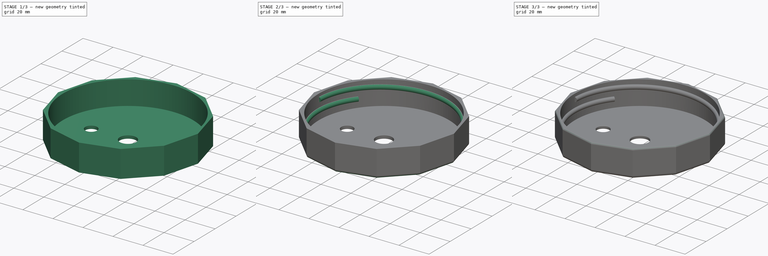
[diagram: build sequence overview — one tinted view per stage of 3, left to right]
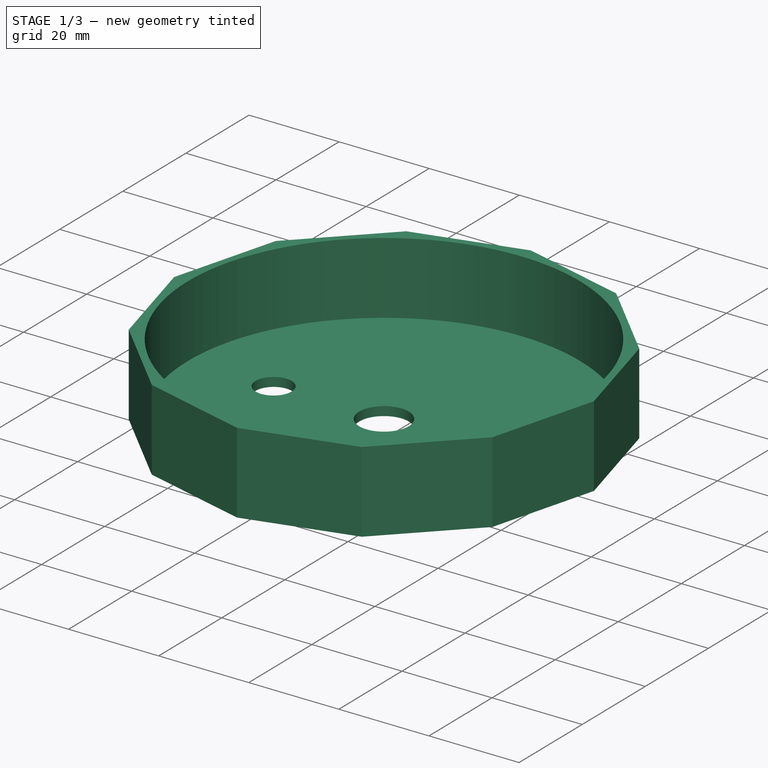
[diagram: stage 1 of 3 — iso view after this stage's code; geometry added in this stage tinted green]
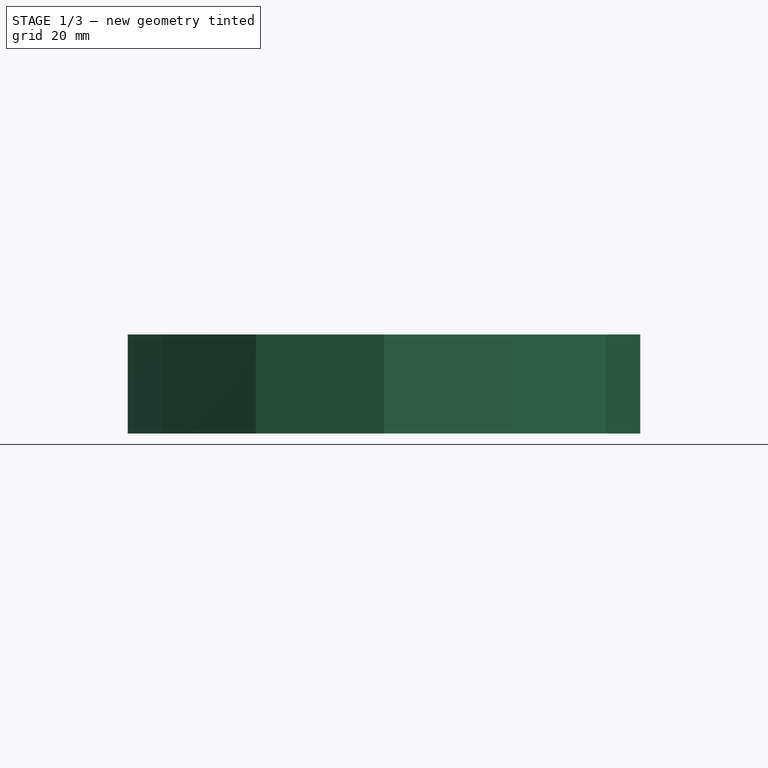
[diagram: stage 1 of 3 — front view after this stage's code; geometry added in this stage tinted green]
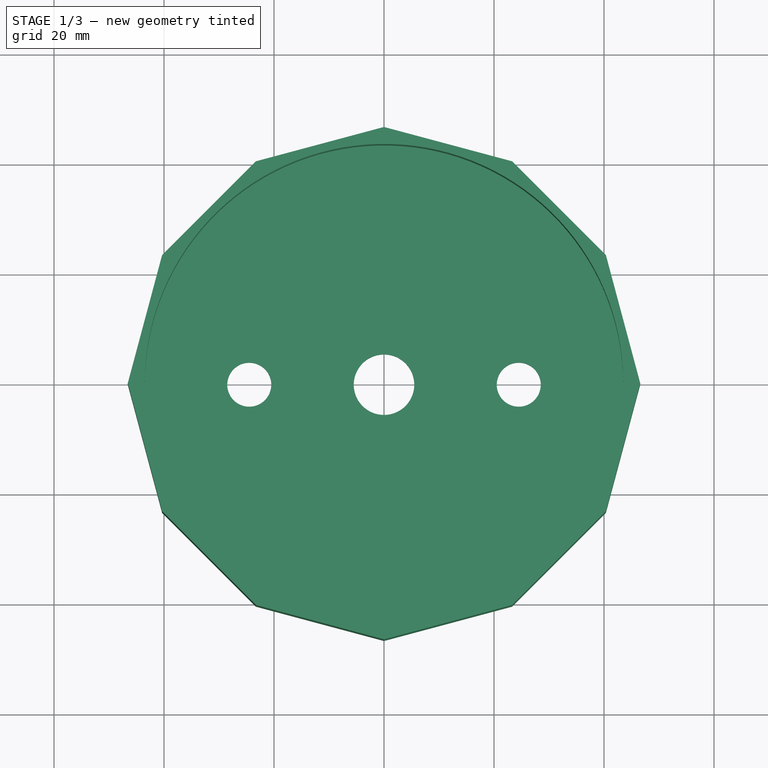
[diagram: stage 1 of 3 — top view after this stage's code; geometry added in this stage tinted green]
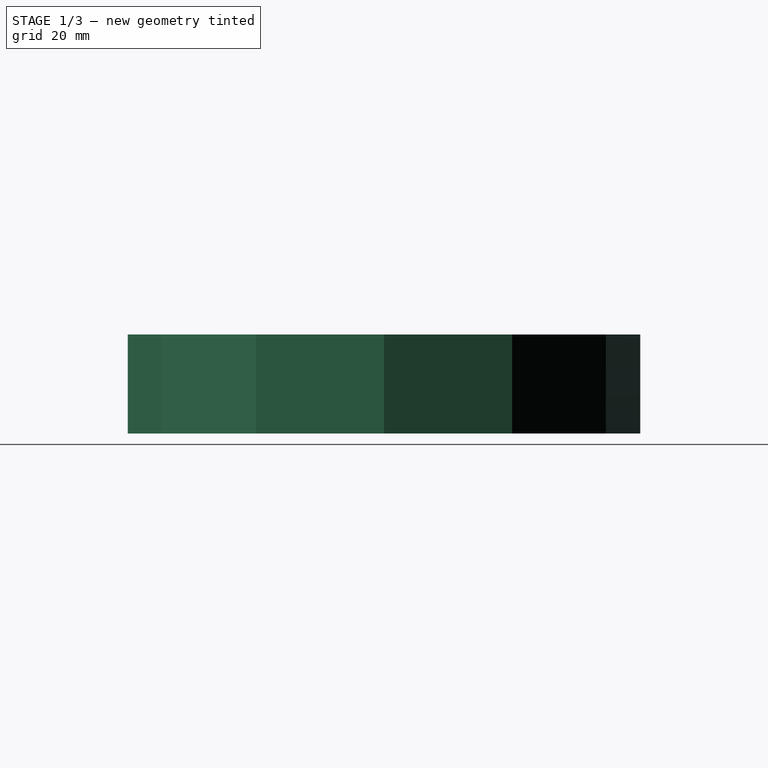
[diagram: stage 1 of 3 — right view after this stage's code; geometry added in this stage tinted green]
FCSTD DOCUMENT  (FreeCAD 2023.131R26244 +5365 (Git))
Label: Mason Jar Mycology Lid - Threaded
License: All rights reserved
LicenseURL: http://en.wikipedia.org/wiki/All_rights_reserved
objects: Sketcher::SketchObject×3, PartDesign::Fillet×3, Spreadsheet::Sheet×2, PartDesign::Body×2, PartDesign::Pad×1, PartDesign::Hole×1, PartDesign::AdditiveHelix×1
note: 26 computed .brp shape members not serialized (recipe doc carries the construction recipe); baked Part::Feature solids carry a one-line shape summary decoded from their .brp

FEATURE [Spreadsheet::Sheet] Spreadsheet  label="Parameters"
  PythonMode = false
  ShowCells = 0
  TreeRank = 1
  cells = A2=Ring Inner Diameter; B2(Ring_Inner_Diameter)=87; C2=Should be large enough to fit over the threads on the glass jar.; A3=Ring Min Thickness; B3(Ring_Min_Thickness)=1.5; C3=The thickness of the thinnest part of the ring.; A4=Ring Side Height; B4(Ring_Side_Height)=16; C4=How much material will screw onto the jar.; A5=Ring Top Height; B5(Ring_Top_Height)=2; C5=How thick the lid is on top of the jar.; A7=Thread Pitch; B7(Thread_Pitch)=6.5; C7=The thread pitch.; A8=Thread Width; B8(Thread_Width)=3; C8=The distance between two thread on the jar.; A9=Thread Height; B9(Thread_Height)=3; C9=The height of the threads from the inner survace of the lid.; A10=Thread Offset; B10(Thread_Offset)=2; C10=Distance from the bottom of the ring where the threads start.; A11=Thread Turns; B11(Thread_Turns)=1.1; C11=The number of turns inside the ring.; A13=Hole Layout; B13(Hole_Layout)=Line; C13=Enter either Line or Triangle; B14=Diameter; C14=Offset from Origin; D14=Angle From Horizontal; A15=Middle Hole; B15(Middle_Hole_Diameter)=11; C15(Middle_Hole_Offset)==B13 == <<Line>> ? 0 : B2 / 5; A16=Left Hole; B16(Left_Hole_Diameter)=8; C16(Left_Hole_Offset)==B13 == <<Line>> ? (B2 / 2 - B15 / 2) / 2 + B15 / 2 : B2 / 5; D16(Left_Hole_Angle)==B13 == <<Line>> ? 90 : 60; A17=Right Hole; B17(Right_Hole_Diameter)=8; C17(Right_Hole_Offset)==B13 == <<Line>> ? (B2 / 2 - B15 / 2) / 2 + B15 / 2 : B2 / 5; D17(Right_Hole_Angle)==B13 == <<Line>> ? 90 : 60; A19=Hole Fillet; B19(Hole_Fillet)=0.5; A20=Top Fillet; B20(Top_Fillet)=2; A21=Bottom Fillet; B21(Bottom_Fillet)=1
FEATURE [Sketcher::SketchObject] Sketch
  ArcFitTolerance = 1e-06
  AttachmentSupport = -> [XY_Plane]
  ExternalBSplineMaxDegree = 5
  ExternalBSplineTolerance = 0.0001
  FullyConstrained = true
  InternalTolerance = 1e-06
  InvalidShape = false
  MakeInternals = false
  MapMode = 5
  Support = -> [XY_Plane]
  TreeRank = 14
  ValidateShape = true
  expr: Constraints[37] = <<Parameters>>.Ring_Inner_Diameter + <<Parameters>>.Ring_Min_Thickness * 2
  expr: Constraints[40] = <<Parameters>>.Middle_Hole_Diameter
  expr: Constraints[41] = <<Parameters>>.Left_Hole_Diameter
  expr: Constraints[42] = <<Parameters>>.Right_Hole_Diameter
  expr: Constraints[44] = <<Parameters>>.Middle_Hole_Offset
  expr: Constraints[46] = <<Parameters>>.Left_Hole_Offset
  expr: Constraints[47] = 180 - <<Parameters>>.Left_Hole_Angle
  expr: Constraints[50] = <<Parameters>>.Right_Hole_Offset
  expr: Constraints[52] = 180 - <<Parameters>>.Right_Hole_Angle
  sketch-geometry (19):
    g0: LineSegment StartX=-40.3459 StartY=23.2937 StartZ=0 EndX=-46.5874 EndY=0 EndZ=0
    g1: LineSegment StartX=-46.5874 StartY=0 StartZ=0 EndX=-40.3459 EndY=-23.2937 EndZ=0
    g2: LineSegment StartX=-40.3459 StartY=-23.2937 StartZ=0 EndX=-23.2937 EndY=-40.3459 EndZ=0
    g3: LineSegment StartX=-23.2937 StartY=-40.3459 StartZ=0 EndX=-7.46e-14 EndY=-46.5874 EndZ=0
    g4: LineSegment StartX=-7.31e-14 StartY=-46.5874 StartZ=0 EndX=23.2937 EndY=-40.3459 EndZ=0
    g5: LineSegment StartX=23.2937 StartY=-40.3459 StartZ=0 EndX=40.3459 EndY=-23.2937 EndZ=0
    g6: LineSegment StartX=40.3459 StartY=-23.2937 StartZ=0 EndX=46.5874 EndY=1.35e-13 EndZ=0
    g7: LineSegment StartX=46.5874 StartY=1.334e-13 StartZ=0 EndX=40.3459 EndY=23.2937 EndZ=0
    g8: LineSegment StartX=40.3459 StartY=23.2937 StartZ=0 EndX=23.2937 EndY=40.3459 EndZ=0
    g9: LineSegment StartX=23.2937 StartY=40.3459 StartZ=0 EndX=1.243e-13 EndY=46.5874 EndZ=0
    g10: LineSegment StartX=1.229e-13 StartY=46.5874 StartZ=0 EndX=-23.2937 EndY=40.3459 EndZ=0
    g11: LineSegment StartX=-23.2937 StartY=40.3459 StartZ=0 EndX=-40.3459 EndY=23.2937 EndZ=0
    g12: Circle [constr] CenterX=0 CenterY=0 CenterZ=0 NormalX=0 NormalY=0 NormalZ=1 AngleXU=0 Radius=46.5874
    g13: Circle [constr] CenterX=0 CenterY=0 CenterZ=0 NormalX=0 NormalY=0 NormalZ=1 AngleXU=0 Radius=45
    g14: Circle CenterX=0 CenterY=0 CenterZ=0 NormalX=0 NormalY=0 NormalZ=1 AngleXU=0 Radius=5.5
    g15: Circle CenterX=24.5 CenterY=3.62e-14 CenterZ=0 NormalX=0 NormalY=0 NormalZ=1 AngleXU=0 Radius=4
    g16: Circle CenterX=-24.5 CenterY=-9.7e-14 CenterZ=0 NormalX=0 NormalY=0 NormalZ=1 AngleXU=0 Radius=4
    g17: LineSegment [constr] StartX=0 StartY=0 StartZ=0 EndX=-24.5 EndY=-9.7e-14 EndZ=0
    g18: LineSegment [constr] StartX=0 StartY=0 StartZ=0 EndX=24.5 EndY=3.62e-14 EndZ=0
  constraints (43):
    c: Coincident(g0,g1)
    c: Coincident(g1,g2)
    c: Coincident(g2,g3)
    c: Coincident(g3,g4)
    c: Coincident(g4,g5)
    c: Coincident(g5,g6)
    c: Coincident(g6,g7)
    c: Coincident(g7,g8)
    c: Coincident(g8,g9)
    c: Coincident(g9,g10)
    c: Coincident(g10,g11)
    c: Coincident(g11,g0)
    c: Equal(g0, g1-g11) x11
    c: PointOnObject(g0,g12)
    c: PointOnObject(g1,g12)
    c: PointOnObject(g2,g12)
    c: PointOnObject(g3,g12)
    c: PointOnObject(g4,g12)
    c: PointOnObject(g5,g12)
    c: PointOnObject(g6,g12)
    c: PointOnObject(g7,g12)
    c: PointOnObject(g8,g12)
    c: PointOnObject(g9,g12)
    c: PointOnObject(g10,g12)
    c: PointOnObject(g11,g12)
    c: Coincident(g12,g-1)
    c: Coincident(g13,g12)
    c: Diameter(g13) = 90
    c: Tangent(g13,g9)
    c: PointOnObject(g0,g-1)
    c: Diameter(g14) = 11
    c: Diameter(g16) = 8
    c: Diameter(g15) = 8
    c: PointOnObject(g14,g-2)
    c: DistanceY(g12,g14) = 0
    c: Coincident(g17,g12)
    c: Distance(g17,g12) = 24.5
    c: Angle(g-2,g17) = 1.5708
    c: Coincident(g16,g17)
    c: Coincident(g18,g12)
    c: Distance(g12,g18) = 24.5
    c: Coincident(g15,g18)
    c: Angle(g18,g-2) = 1.5708
FEATURE [PartDesign::Pad] Pad  label="Lid"
  AddSubType = 0
  AlongSketchNormal = false
  AutoTaperInnerAngle = true
  CheckUpToFaceLimits = true
  ClaimChildren = false
  Direction = (0,0,1)
  Fit = 0
  FitJoin = 0
  InnerFit = 0
  InnerFitJoin = 0
  InvalidShape = false
  Length = 18
  Length2 = 100
  Linearize = true
  NewSolid = false
  Profile = -> Sketch
  Suppress = false
  TaperInnerAngle = 0
  TaperInnerAngleRev = 0
  TreeRank = 15
  Type = 0
  ValidateShape = true
  _ProfileBasedVersion = 1
  expr: Length = <<Parameters>>.Ring_Side_Height + <<Parameters>>.Ring_Top_Height
FEATURE [Sketcher::SketchObject] Sketch001  label="Hole"
  ArcFitTolerance = 1e-06
  AttachmentSupport = -> [Pad]
  ExternalBSplineMaxDegree = 5
  ExternalBSplineTolerance = 0.0001
  FullyConstrained = true
  InternalTolerance = 1e-06
  InvalidShape = false
  MakeInternals = false
  MapMode = 5
  Placement = pos=(0,0,18) rot=(0,0,1;0rad)
  Support = -> [Pad]
  TreeRank = 16
  ValidateShape = true
  expr: Constraints[1] = <<Parameters>>.Ring_Inner_Diameter
  sketch-geometry (1):
    g0: Circle CenterX=0 CenterY=0 CenterZ=0 NormalX=0 NormalY=0 NormalZ=1 AngleXU=0 Radius=43.5
  constraints (2):
    c: Coincident(g0,g-1)
    c: Diameter(g0) = 87
FEATURE [PartDesign::Hole] Hole  label="Bottle Opening"
  AddSubType = 1
  BaseFeature = -> Pad
  ClaimChildren = false
  CustomThreadClearance = 0
  Depth = 16
  DepthType = 0
  Diameter = 87
  DrillForDepth = false
  DrillPoint = 0
  DrillPointAngle = 118
  Fit = 0
  FitJoin = 0
  HoleCutCountersinkAngle = 90
  HoleCutCustomValues = false
  HoleCutDepth = 0
  HoleCutDiameter = 6.1
  HoleCutType = 0
  InnerFit = 0
  InnerFitJoin = 0
  InvalidShape = false
  Linearize = true
  ModelThread = false
  NewSolid = false
  Profile = -> Sketch001
  Suppress = false
  Tapered = false
  TaperedAngle = 90
  ThreadClass = 0
  ThreadDepth = 16
  ThreadDepthType = 0
  ThreadDirection = 0
  ThreadFit = 0
  ThreadSize = 0
  ThreadType = 0
  Threaded = false
  TreeRank = 17
  UseCustomThreadClearance = false
  ValidateShape = true
  _ProfileBasedVersion = 1
  expr: Depth = <<Parameters>>.Ring_Side_Height
  expr: Diameter = <<Parameters>>.Ring_Inner_Diameter
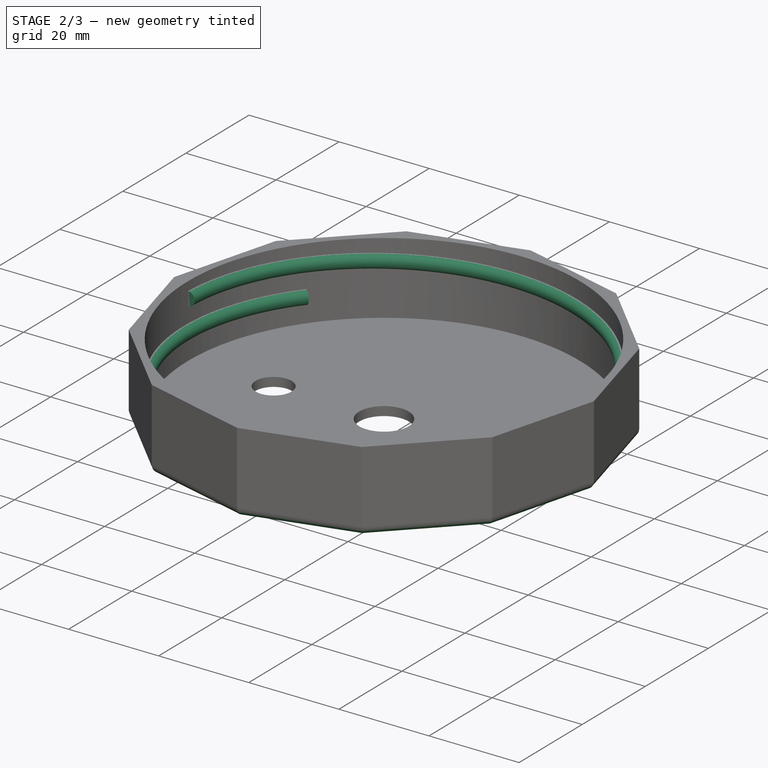
[diagram: stage 2 of 3 — iso view after this stage's code; geometry added in this stage tinted green]
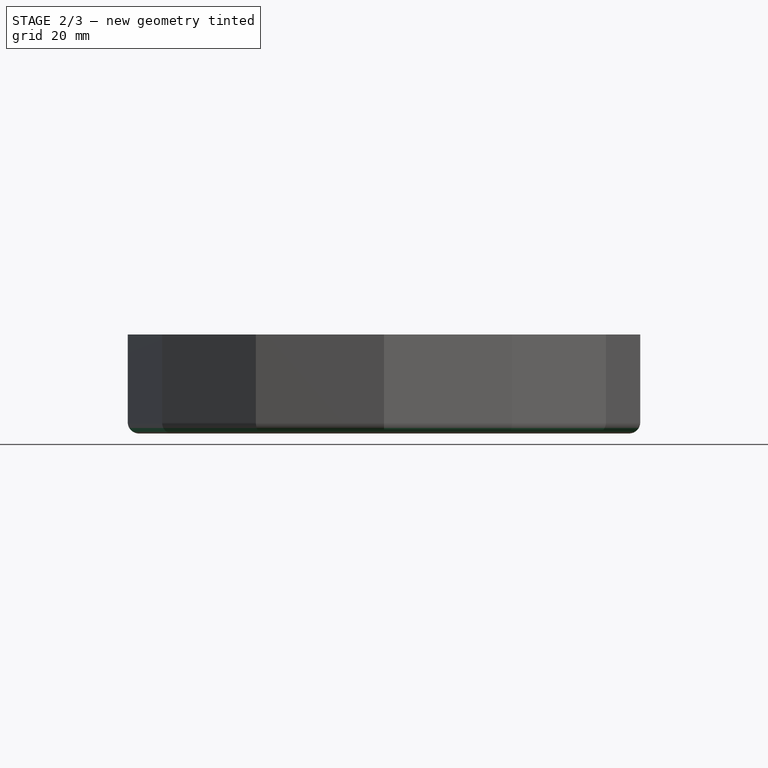
[diagram: stage 2 of 3 — front view after this stage's code; geometry added in this stage tinted green]
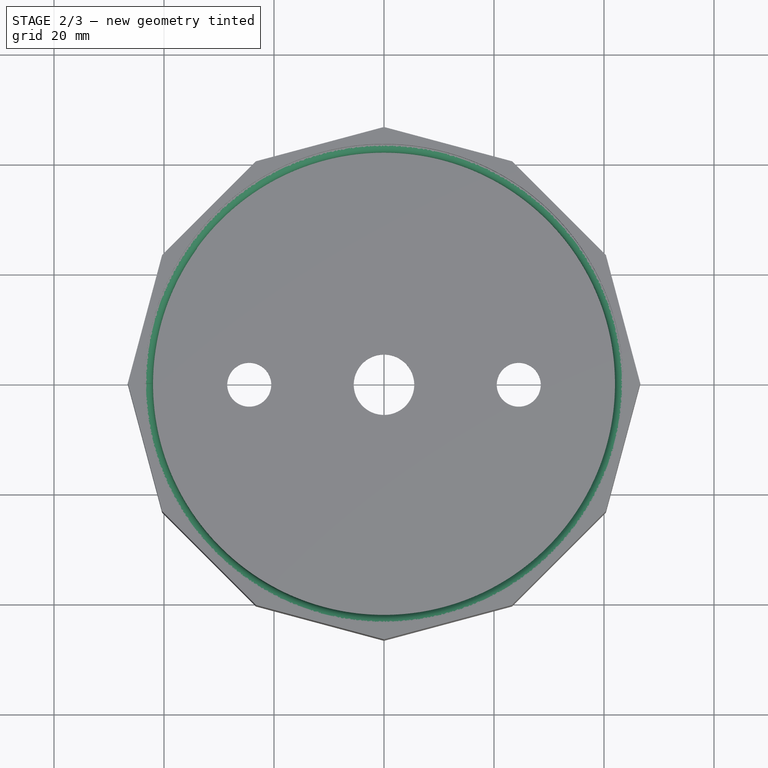
[diagram: stage 2 of 3 — top view after this stage's code; geometry added in this stage tinted green]
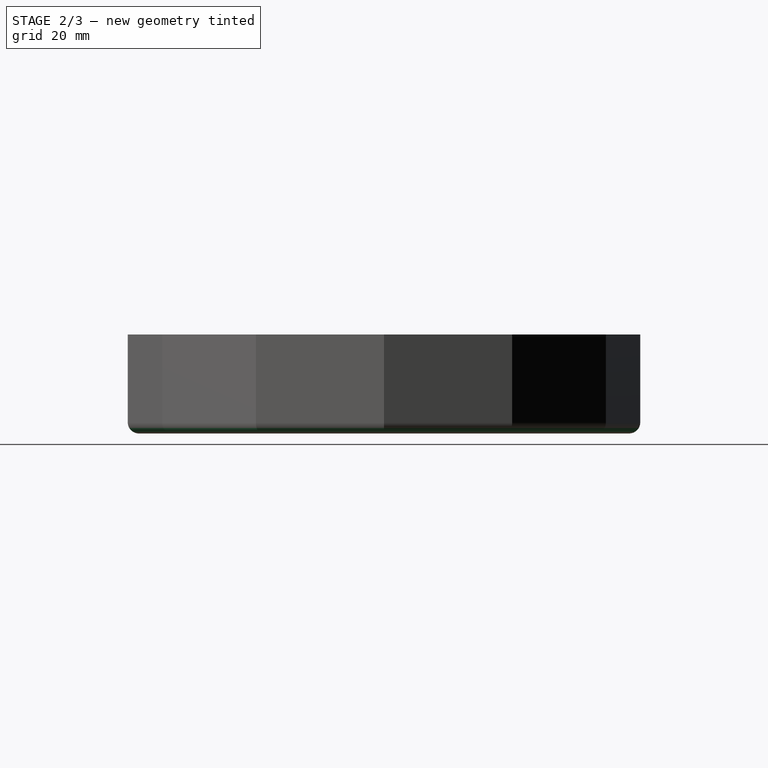
[diagram: stage 2 of 3 — right view after this stage's code; geometry added in this stage tinted green]
FEATURE [Sketcher::SketchObject] Sketch002  label="Thread Profile"
  ArcFitTolerance = 1e-06
  AttachmentSupport = -> [XZ_Plane]
  ExternalBSplineMaxDegree = 5
  ExternalBSplineTolerance = 0.0001
  FullyConstrained = true
  InternalTolerance = 1e-06
  InvalidShape = false
  MakeInternals = false
  MapMode = 5
  Placement = pos=(0,0,0) rot=(1,0,0;1.5708rad)
  Support = -> [XZ_Plane]
  TreeRank = 18
  ValidateShape = true
  expr: Constraints[1] = <<Parameters>>.Thread_Width
  expr: Constraints[2] = <<Parameters>>.Ring_Side_Height + <<Parameters>>.Ring_Top_Height - <<Parameters>>.Thread_Offset
  expr: Constraints[3] = <<Parameters>>.Ring_Inner_Diameter / 2
  expr: Constraints[6] = <<Parameters>>.Thread_Width
  sketch-geometry (2):
    g0: LineSegment StartX=-43.5 StartY=13 StartZ=0 EndX=-43.5 EndY=16 EndZ=0
    g1: ArcOfCircle CenterX=-43.5 CenterY=14.5 CenterZ=0 NormalX=0 NormalY=0 NormalZ=1 AngleXU=0 Radius=1.5 StartAngle=4.71238 EndAngle=7.85399
  constraints (7):
    c: Vertical(g0)
    c: Distance(g0,g0) = 3
    c: DistanceY(g-1,g0) = 16
    c: DistanceX(g0,g-1) = 43.5
    c: Coincident(g1,g0)
    c: Coincident(g1,g0)
    c: Diameter(g1) = 3
FEATURE [PartDesign::AdditiveHelix] Helix  label="Threads"
  AddSubType = 0
  Angle = 0
  Axis = (0,-2e-16,1)
  Base = (0,0,0)
  BaseFeature = -> Hole
  ClaimChildren = false
  Fit = 0
  FitJoin = 0
  Growth = 0
  HasBeenEdited = true
  Height = 7.15
  InnerFit = 0
  InnerFitJoin = 0
  InvalidShape = false
  LeftHanded = false
  Linearize = true
  Mode = 1
  NewSolid = false
  Outside = false
  Pitch = 6.5
  Profile = -> Sketch002
  ReferenceAxis = -> Sketch002 [V_Axis]
  Reversed = true
  Suppress = false
  TreeRank = 19
  Turns = 1.1
  ValidateShape = true
  _ProfileBasedVersion = 1
  expr: Pitch = <<Parameters>>.Thread_Pitch
  expr: Turns = <<Parameters>>.Thread_Turns
FEATURE [Spreadsheet::Sheet] Spreadsheet001  label="Bootle Specs"
  PythonMode = false
  ShowCells = 0
  TreeRank = 2
  cells = B2=Inner Ring Diameter; C2=Ring Side Height; D2=Thread Pitch; E2=Thread Width; A3=Large Mouth Mason Jar; B3=87; C3=16; D3=6.5; E3=3; A4=Narrow Mouth Mason Jar; B4=70; C4=16; D4=6.5; E4=3; A5=24oz Prego Jar; B5=62.25; C5=10.5; D5=3; E5=1
FEATURE [PartDesign::Fillet] Fillet
  AddSubType = 0
  Base = -> Helix [Edge17,Edge16,Edge15,Edge14,Edge13,Edge12,Edge11,Edge9,Edge3,Edge6,Edge19,Edge18]
  BaseFeature = -> Helix
  InvalidShape = false
  NewSolid = false
  Radius = 2
  SupportTransform = false
  Suppress = false
  TreeRank = 20
  ValidateShape = true
  expr: Radius = <<Parameters>>.Top_Fillet
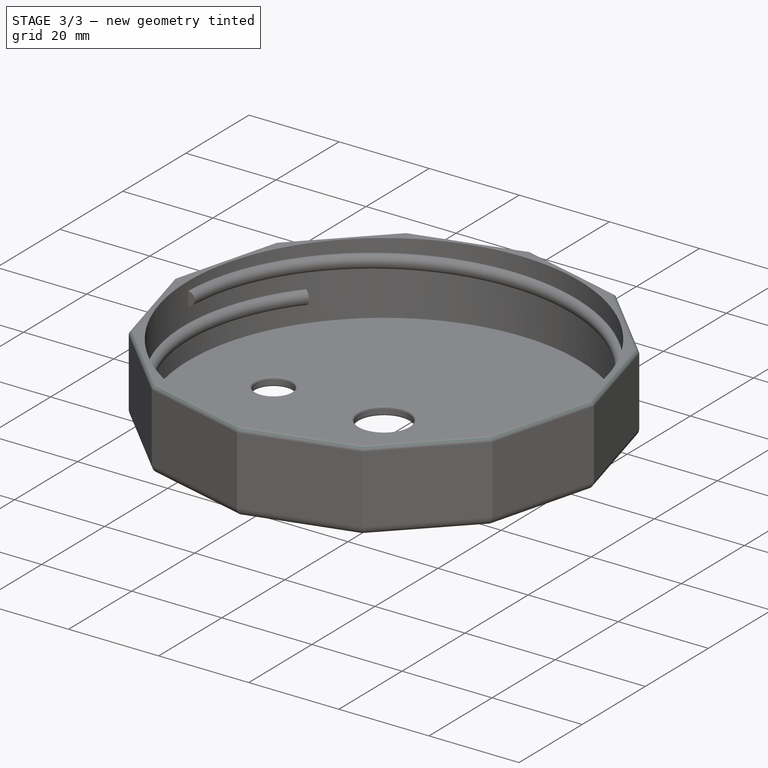
[diagram: stage 3 of 3 — iso view after this stage's code; geometry added in this stage tinted green]
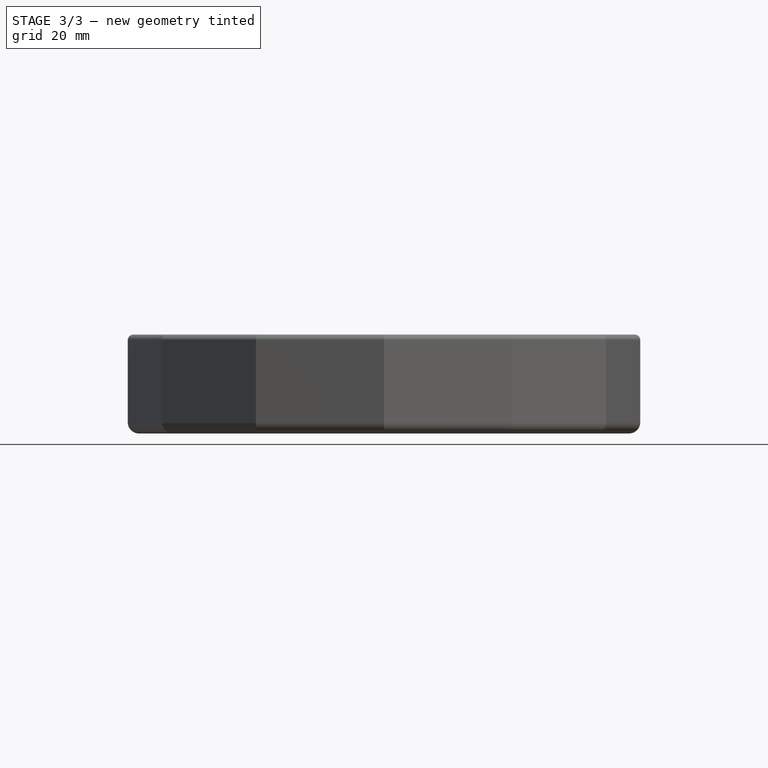
[diagram: stage 3 of 3 — front view after this stage's code; geometry added in this stage tinted green]
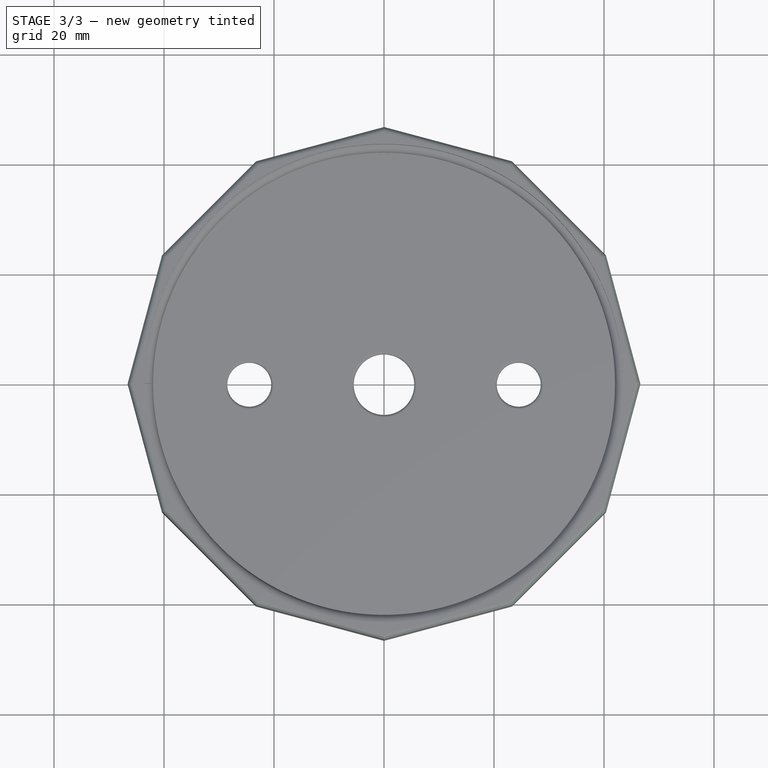
[diagram: stage 3 of 3 — top view after this stage's code; geometry added in this stage tinted green]
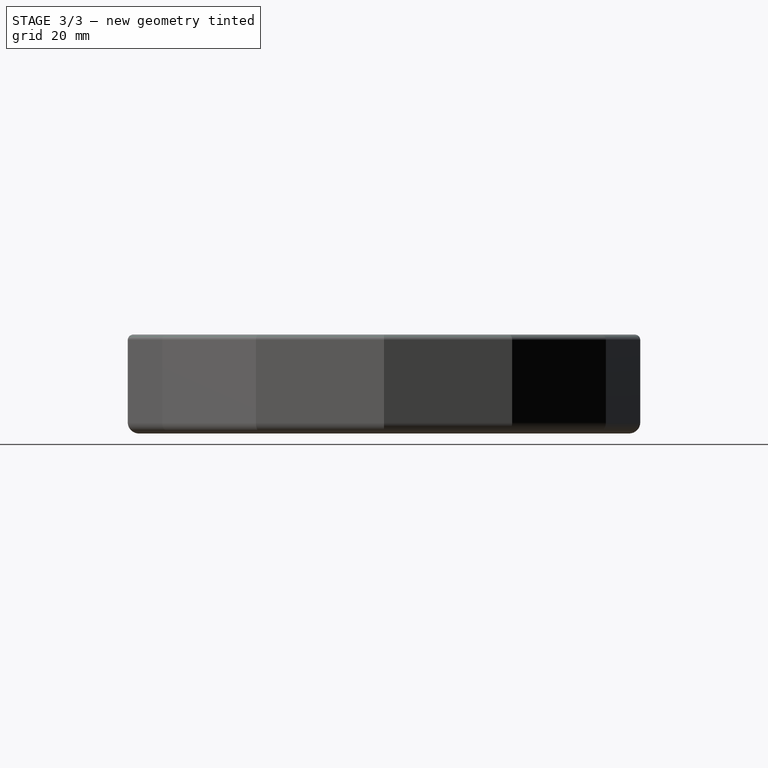
[diagram: stage 3 of 3 — right view after this stage's code; geometry added in this stage tinted green]
FEATURE [PartDesign::Fillet] Fillet001
  AddSubType = 0
  Base = -> Fillet [Edge18,Edge16,Edge14,Edge12,Edge7,Edge3,Edge11,Edge13,Edge15,Edge17,Edge19,Edge20]
  BaseFeature = -> Fillet
  InvalidShape = false
  NewSolid = false
  Radius = 1
  SupportTransform = false
  Suppress = false
  TreeRank = 21
  ValidateShape = true
  expr: Radius = <<Parameters>>.Bottom_Fillet
FEATURE [PartDesign::Fillet] Fillet002
  AddSubType = 0
  Base = -> Fillet001 [Face34,Face36,Face35]
  BaseFeature = -> Fillet001
  InvalidShape = false
  NewSolid = false
  Radius = 0.5
  SupportTransform = false
  Suppress = false
  TreeRank = 22
  ValidateShape = true
  expr: Radius = <<Parameters>>.Hole_Fillet
FEATURE [PartDesign::Body] Body  label="LidBody"
  AutoGroupSolids = false
  ClaimAllChildren = false
  ExportMode = 0
  Group = -> [Sketch,Pad,Sketch001,Hole,Sketch002,Helix,Fillet,Fillet001,Fillet002]
  InvalidShape = false
  Origin = -> Origin
  Tip = -> Fillet002
  TreeRank = 13
  ValidateShape = true
  _ExportChildren = -> [Pad,Hole,Helix,Fillet,Fillet001,Fillet002]
  _GroupVersion = 1
FEATURE [PartDesign::Body] Body001  label="Male Luer Lock"
  AutoGroupSolids = false
  ClaimAllChildren = false
  ExportMode = 0
  InvalidShape = false
  Origin = -> Origin001
  TreeRank = 32
  ValidateShape = true
  _GroupVersion = 1
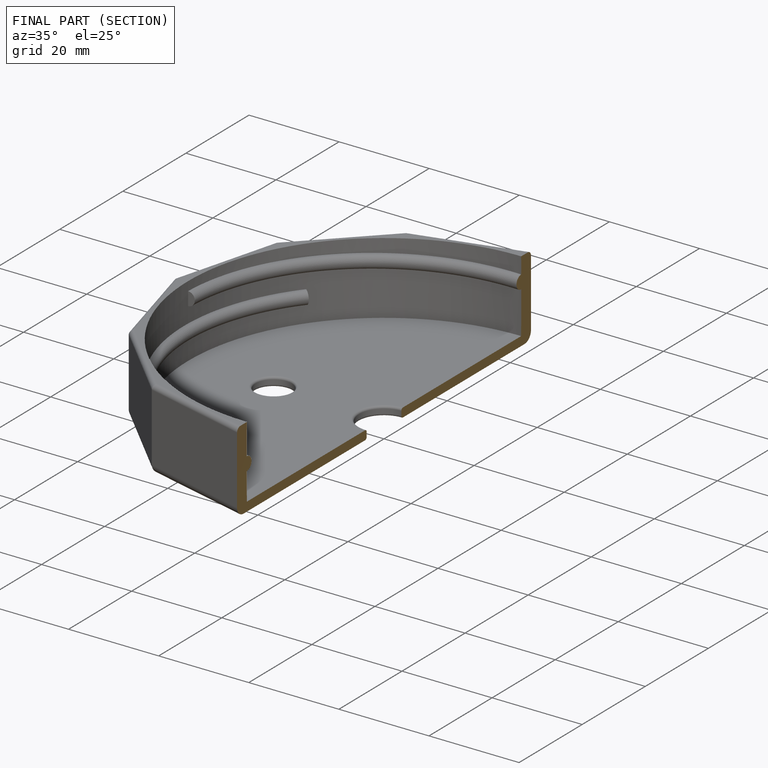
[diagram: finished part — half-section view (interior)]
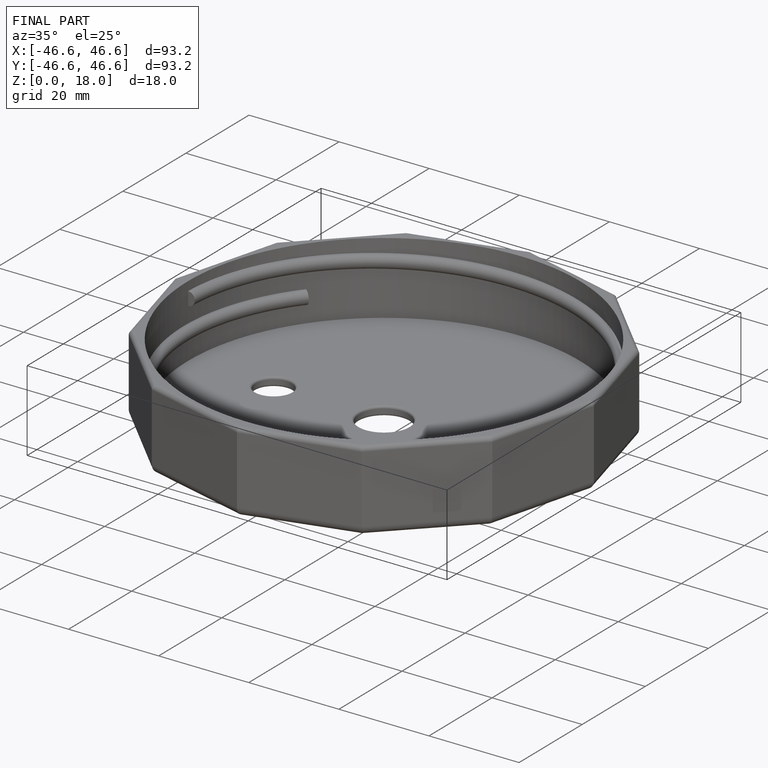
[diagram: finished part — iso view with bounding-box wireframe]
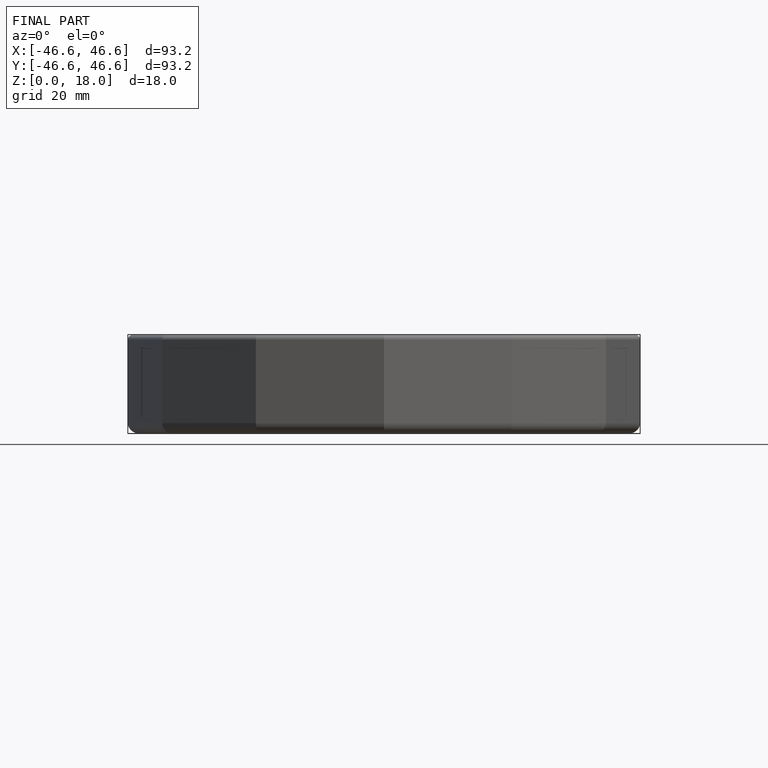
[diagram: finished part — front view with bounding-box wireframe]
